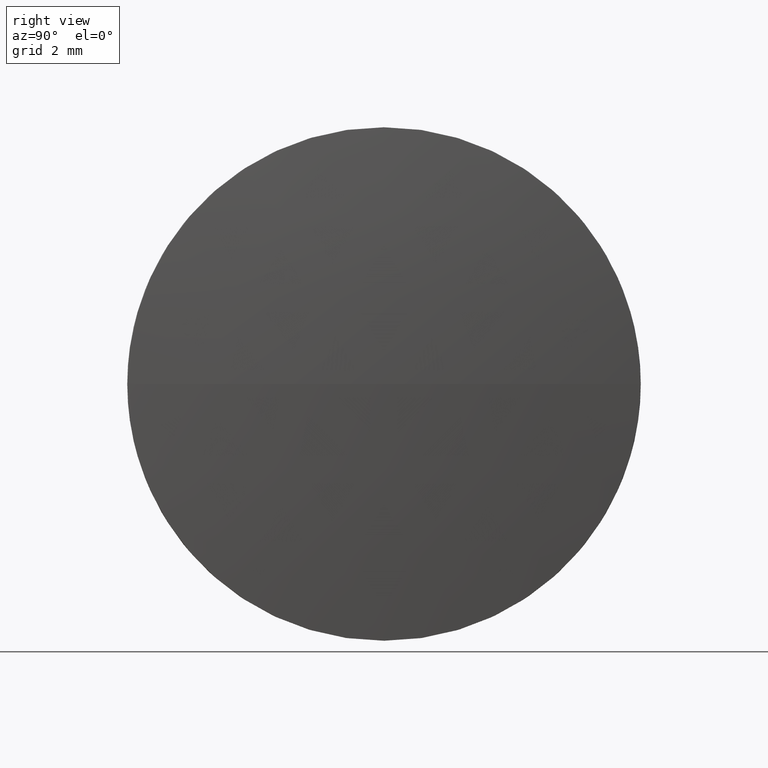
[diagram: clean part render]
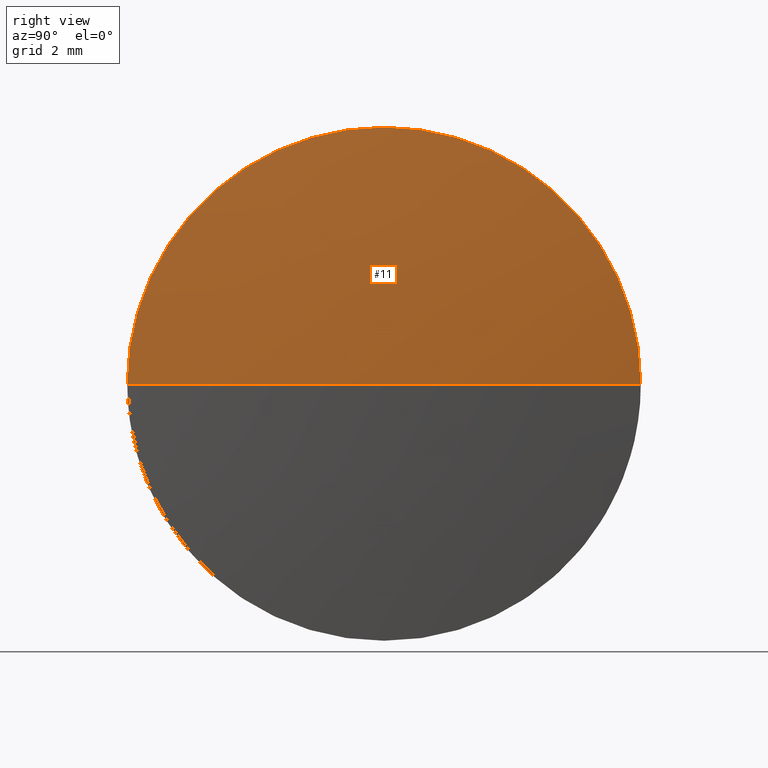
[diagram: same view with one face highlighted and labeled with its STEP entity id]
A machine part, right view. The second image highlights one B-rep face of the part: STEP entity #11.
In plain terms, the highlighted spherical surface has radius 52.2033 mm.
Its self-contained STEP definition (entity closure, byte-faithful):
#11 = ADVANCED_FACE ( 'NONE', ( #88 ), #48, .T. ) ;
#12 = VERTEX_POINT ( 'NONE', #99 ) ;
#13 = VERTEX_POINT ( 'NONE', #22 ) ;
#14 = CARTESIAN_POINT ( 'NONE',  ( 1102.543462945326800, 183.3935781701384300, 0.0000000000000000000 ) ) ;
#15 = CIRCLE ( 'NONE', #68, 52.20333333333340400 ) ;
#16 = EDGE_CURVE ( 'NONE', #78, #174, #15, .T. ) ;
#20 = CARTESIAN_POINT ( 'NONE',  ( 1050.580129611993500, 183.3935781701377700, 0.0000000000000000000 ) ) ;
#22 = CARTESIAN_POINT ( 'NONE',  ( 1102.543462945326800, 183.3935781701384300, 5.000000000000004400 ) ) ;
#27 = ORIENTED_EDGE ( 'NONE', *, *, #16, .F. ) ;
#30 = DIRECTION ( 'NONE',  ( -0.0000000000000000000, 0.0000000000000000000, 1.000000000000000000 ) ) ;
#48 = SPHERICAL_SURFACE ( 'NONE', #77, 52.20333333333339700 ) ;
#51 = DIRECTION ( 'NONE',  ( 1.000000000000000000, 0.0000000000000000000, 0.0000000000000000000 ) ) ;
#61 = CIRCLE ( 'NONE', #167, 5.000000000000004400 ) ;
#65 = CIRCLE ( 'NONE', #184, 5.000000000000004400 ) ;
#68 = AXIS2_PLACEMENT_3D ( 'NONE', #81, #95, #92 ) ;
#70 = DIRECTION ( 'NONE',  ( -1.000000000000000000, -0.0000000000000000000, -0.0000000000000000000 ) ) ;
#77 = AXIS2_PLACEMENT_3D ( 'NONE', #20, #127, #165 ) ;
#78 = VERTEX_POINT ( 'NONE', #110 ) ;
#81 = CARTESIAN_POINT ( 'NONE',  ( 1050.580129611993500, 183.3935781701377700, 0.0000000000000000000 ) ) ;
#84 = CARTESIAN_POINT ( 'NONE',  ( 1102.543462945326800, 178.3935781701379100, -6.123233995736625300E-016 ) ) ;
#88 = FACE_OUTER_BOUND ( 'NONE', #182, .T. ) ;
#92 = DIRECTION ( 'NONE',  ( 0.0000000000000000000, 1.000000000000000000, 1.224646799147353200E-016 ) ) ;
#95 = DIRECTION ( 'NONE',  ( 0.0000000000000000000, 1.224646799147353200E-016, -1.000000000000000000 ) ) ;
#99 = CARTESIAN_POINT ( 'NONE',  ( 1102.543462945326800, 188.3935781701383100, 0.0000000000000000000 ) ) ;
#104 = CIRCLE ( 'NONE', #152, 52.20333333333337600 ) ;
#106 = EDGE_CURVE ( 'NONE', #78, #12, #104, .T. ) ;
#110 = CARTESIAN_POINT ( 'NONE',  ( 1102.783462945326800, 183.3935781701377700, 0.0000000000000000000 ) ) ;
#116 = DIRECTION ( 'NONE',  ( -1.000000000000000000, -0.0000000000000000000, -0.0000000000000000000 ) ) ;
#119 = EDGE_CURVE ( 'NONE', #174, #13, #61, .T. ) ;
#122 = DIRECTION ( 'NONE',  ( 0.0000000000000000000, 0.0000000000000000000, 1.000000000000000000 ) ) ;
#127 = DIRECTION ( 'NONE',  ( -0.0000000000000000000, 0.0000000000000000000, -1.000000000000000000 ) ) ;
#131 = DIRECTION ( 'NONE',  ( 0.0000000000000000000, 0.0000000000000000000, 1.000000000000000000 ) ) ;
#136 = ORIENTED_EDGE ( 'NONE', *, *, #175, .F. ) ;
#141 = ORIENTED_EDGE ( 'NONE', *, *, #106, .T. ) ;
#147 = CARTESIAN_POINT ( 'NONE',  ( 1050.580129611993500, 183.3935781701377700, 0.0000000000000000000 ) ) ;
#152 = AXIS2_PLACEMENT_3D ( 'NONE', #147, #30, #51 ) ;
#161 = CARTESIAN_POINT ( 'NONE',  ( 1102.543462945326800, 183.3935781701384300, 0.0000000000000000000 ) ) ;
#165 = DIRECTION ( 'NONE',  ( 0.0000000000000000000, 1.000000000000000000, 0.0000000000000000000 ) ) ;
#167 = AXIS2_PLACEMENT_3D ( 'NONE', #14, #116, #131 ) ;
#171 = ORIENTED_EDGE ( 'NONE', *, *, #119, .F. ) ;
#174 = VERTEX_POINT ( 'NONE', #84 ) ;
#175 = EDGE_CURVE ( 'NONE', #13, #12, #65, .T. ) ;
#182 = EDGE_LOOP ( 'NONE', ( #27, #141, #136, #171 ) ) ;
#184 = AXIS2_PLACEMENT_3D ( 'NONE', #161, #70, #122 ) ;